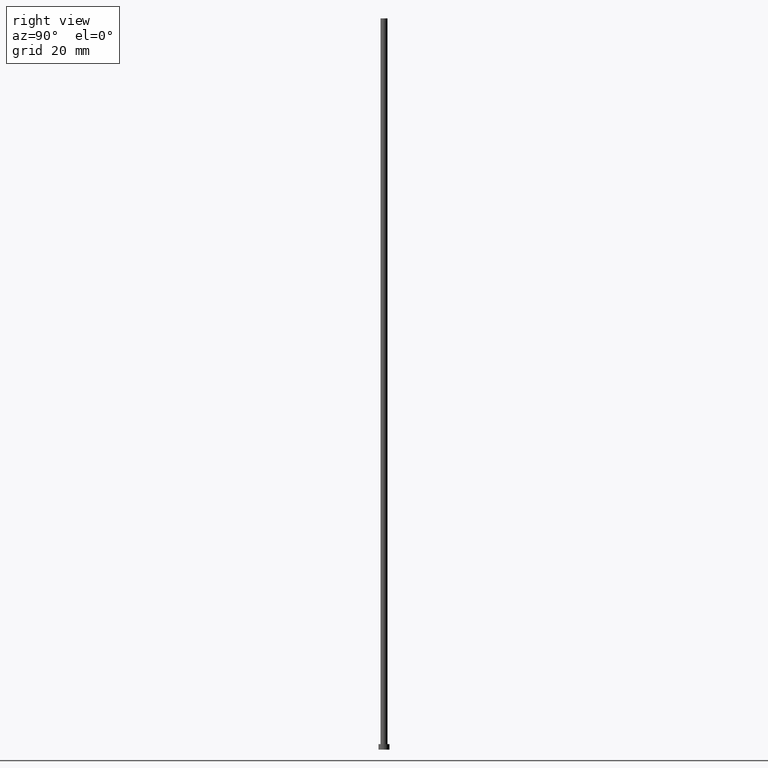
[diagram: clean part render]
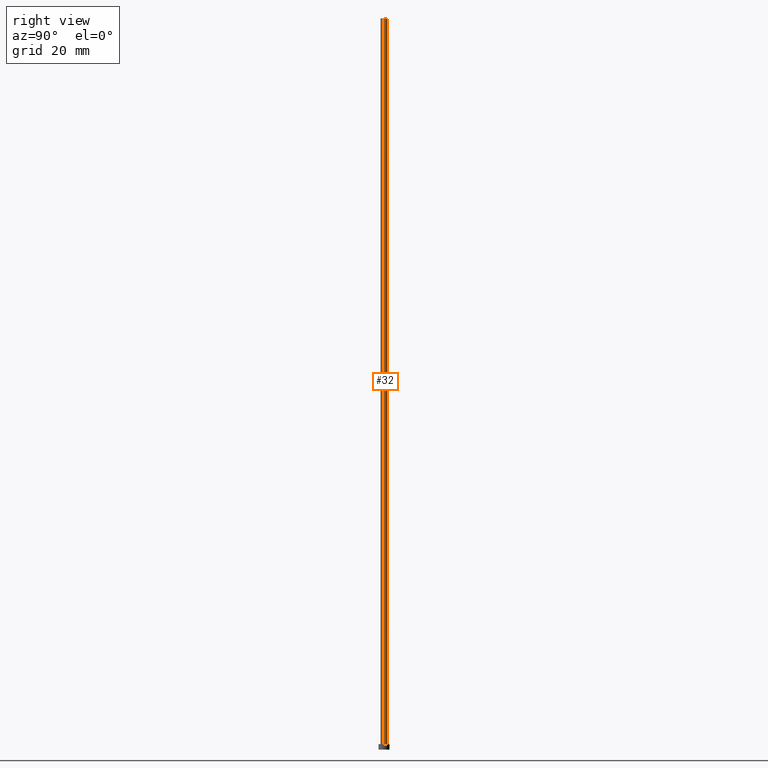
[diagram: same view with one face highlighted and labeled with its STEP entity id]
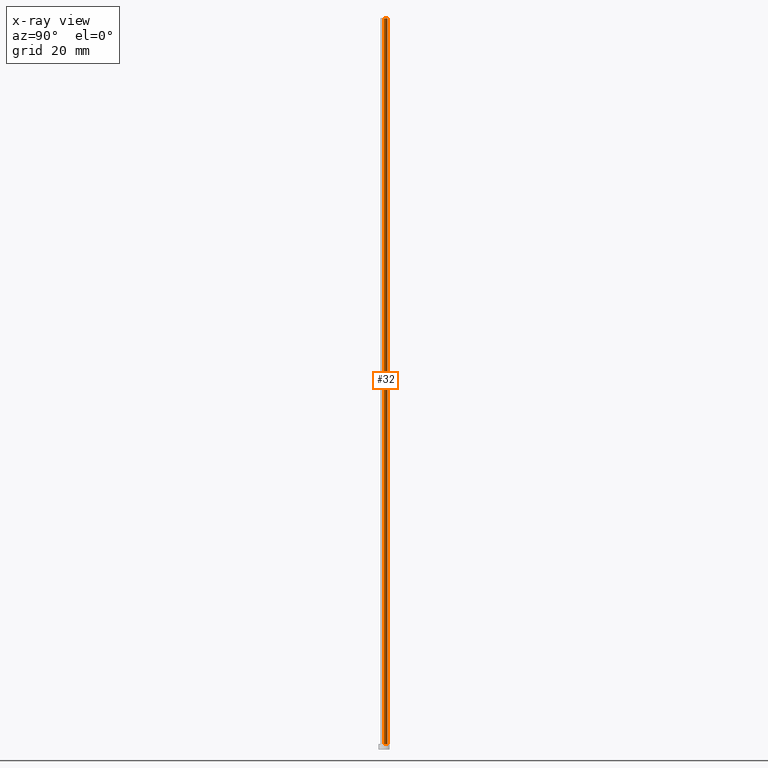
[diagram: x-ray of the same camera — body ghosted, the highlighted face saturated]
A machine part, right view. The second image highlights one B-rep face of the part: STEP entity #32.
The next image is the same camera in x-ray: the body ghosted, the highlighted face saturated — about 0% of this face is hidden behind the body in this view.
In plain terms, the highlighted cylindrical surface (edge-blend (fillet) strip) has radius 0.95 mm, axis along (-0, -0, -1).
Its self-contained STEP definition (entity closure, byte-faithful):
#1 = CARTESIAN_POINT ( 'NONE',  ( 0.000000000000000000, 0.000000000000000000, 200.0000000000000000 ) ) ;
#18 = EDGE_CURVE ( 'NONE', #188, #227, #234, .T. ) ;
#22 = LINE ( 'NONE', #104, #254 ) ;
#28 = EDGE_LOOP ( 'NONE', ( #208, #47, #40, #152 ) ) ;
#32 = ADVANCED_FACE ( 'NONE', ( #83 ), #113, .T. ) ;
#40 = ORIENTED_EDGE ( 'NONE', *, *, #56, .T. ) ;
#47 = ORIENTED_EDGE ( 'NONE', *, *, #237, .T. ) ;
#53 = AXIS2_PLACEMENT_3D ( 'NONE', #191, #207, #62 ) ;
#56 = EDGE_CURVE ( 'NONE', #136, #111, #99, .T. ) ;
#58 = VECTOR ( 'NONE', #131, 1000.000000000000000 ) ;
#59 = DIRECTION ( 'NONE',  ( 1.000000000000000000, 0.000000000000000000, 0.000000000000000000 ) ) ;
#60 = CARTESIAN_POINT ( 'NONE',  ( 0.9499999999999999556, 1.163414459189985682E-16, 200.0000000000000000 ) ) ;
#62 = DIRECTION ( 'NONE',  ( 1.000000000000000000, 0.000000000000000000, 0.000000000000000000 ) ) ;
#76 = AXIS2_PLACEMENT_3D ( 'NONE', #1, #82, #59 ) ;
#82 = DIRECTION ( 'NONE',  ( 0.000000000000000000, 0.000000000000000000, 1.000000000000000000 ) ) ;
#83 = FACE_OUTER_BOUND ( 'NONE', #28, .T. ) ;
#85 = DIRECTION ( 'NONE',  ( -1.000000000000000000, 0.000000000000000000, 0.000000000000000000 ) ) ;
#99 = CIRCLE ( 'NONE', #53, 0.9499999999999999556 ) ;
#104 = CARTESIAN_POINT ( 'NONE',  ( 0.9499999999999999556, 1.163414459189985682E-16, 200.0000000000000000 ) ) ;
#111 = VERTEX_POINT ( 'NONE', #231 ) ;
#113 = CYLINDRICAL_SURFACE ( 'NONE', #115, 0.9499999999999999556 ) ;
#115 = AXIS2_PLACEMENT_3D ( 'NONE', #149, #170, #85 ) ;
#131 = DIRECTION ( 'NONE',  ( -0.000000000000000000, -0.000000000000000000, -1.000000000000000000 ) ) ;
#133 = CARTESIAN_POINT ( 'NONE',  ( 0.9499999999999999556, 1.163414459189985682E-16, 1.500000000000000000 ) ) ;
#136 = VERTEX_POINT ( 'NONE', #133 ) ;
#146 = LINE ( 'NONE', #221, #58 ) ;
#149 = CARTESIAN_POINT ( 'NONE',  ( 0.000000000000000000, 0.000000000000000000, 200.0000000000000000 ) ) ;
#152 = ORIENTED_EDGE ( 'NONE', *, *, #190, .F. ) ;
#170 = DIRECTION ( 'NONE',  ( -0.000000000000000000, -0.000000000000000000, -1.000000000000000000 ) ) ;
#185 = DIRECTION ( 'NONE',  ( -0.000000000000000000, -0.000000000000000000, -1.000000000000000000 ) ) ;
#188 = VERTEX_POINT ( 'NONE', #60 ) ;
#190 = EDGE_CURVE ( 'NONE', #227, #111, #146, .T. ) ;
#191 = CARTESIAN_POINT ( 'NONE',  ( 0.000000000000000000, 0.000000000000000000, 1.500000000000000000 ) ) ;
#203 = CARTESIAN_POINT ( 'NONE',  ( -0.9499999999999999556, 0.000000000000000000, 200.0000000000000000 ) ) ;
#207 = DIRECTION ( 'NONE',  ( 0.000000000000000000, 0.000000000000000000, 1.000000000000000000 ) ) ;
#208 = ORIENTED_EDGE ( 'NONE', *, *, #18, .F. ) ;
#221 = CARTESIAN_POINT ( 'NONE',  ( -0.9499999999999999556, 0.000000000000000000, 200.0000000000000000 ) ) ;
#227 = VERTEX_POINT ( 'NONE', #203 ) ;
#231 = CARTESIAN_POINT ( 'NONE',  ( -0.9499999999999999556, 0.000000000000000000, 1.500000000000000000 ) ) ;
#234 = CIRCLE ( 'NONE', #76, 0.9499999999999999556 ) ;
#237 = EDGE_CURVE ( 'NONE', #188, #136, #22, .T. ) ;
#254 = VECTOR ( 'NONE', #185, 1000.000000000000000 ) ;